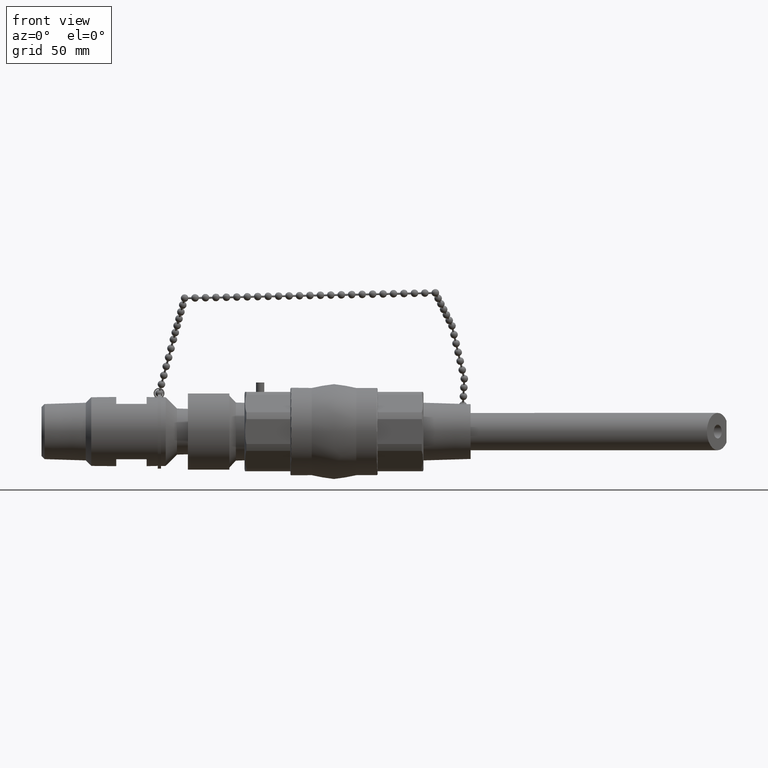
[diagram: clean part render]
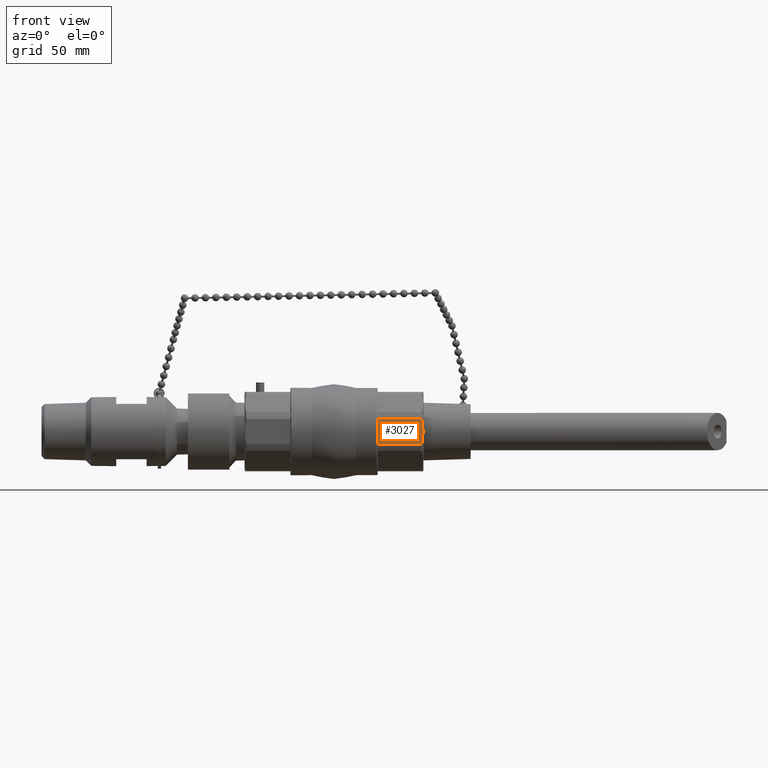
[diagram: same view with one face highlighted and labeled with its STEP entity id]
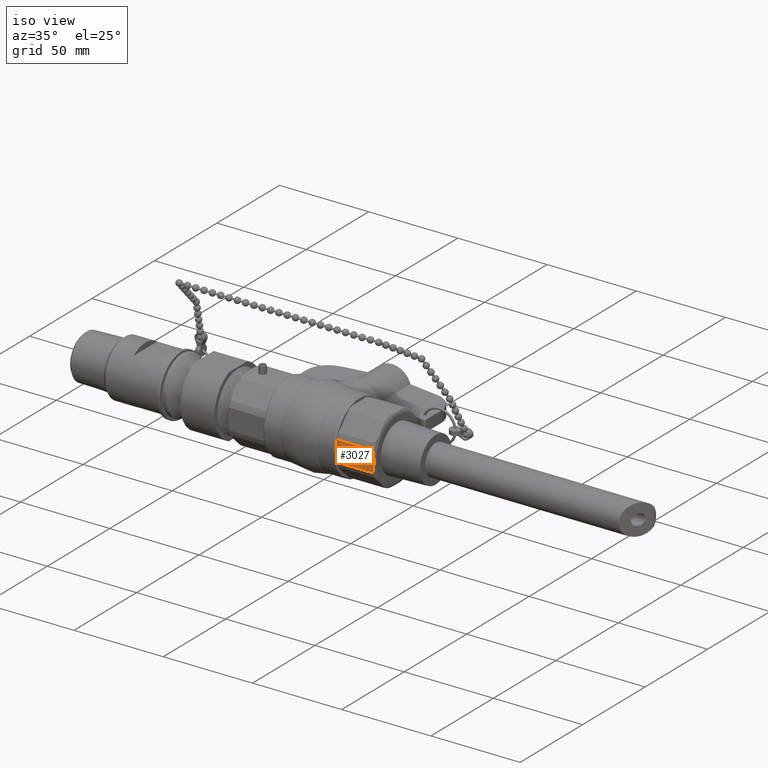
[diagram: same view with one face highlighted and labeled with its STEP entity id]
A machine part, front view. The second image highlights one B-rep face of the part: STEP entity #3027.
A second angle (iso view) of the same face is appended — the face is thin or edge-on in the first view.
In plain terms, the highlighted face is a freeform B-spline surface patch.
Its self-contained STEP definition (entity closure, byte-faithful):
#2114=CARTESIAN_POINT('',(1.585112702707064,-0.717500000000000,0.225161608628114));
#2115=VERTEX_POINT('',#2114);
#2123=CARTESIAN_POINT('',(1.585112702707064,-0.717500000000000,-0.225161608628114));
#2124=VERTEX_POINT('',#2123);
#2125=CARTESIAN_POINT('',(1.585112702707064,-0.717500000000000,0.225161608628114));
#2126=CARTESIAN_POINT('',(1.593438193017208,-0.717500000000000,0.194850896924236));
#2127=CARTESIAN_POINT('',(1.598495457448399,-0.717500000000000,0.162194368817727));
#2128=CARTESIAN_POINT('',(1.606212016415179,-0.717500000000000,0.085193501644084));
#2129=CARTESIAN_POINT('',(1.607564392373896,-0.717500000000000,0.040601387131935));
#2130=CARTESIAN_POINT('',(1.607564392373896,-0.717500000000000,1.968699E-016));
#2131=CARTESIAN_POINT('',(1.607564392373896,-0.717500000000000,-0.040601387131935));
#2132=CARTESIAN_POINT('',(1.606212016415179,-0.717500000000000,-0.085193501644084));
#2133=CARTESIAN_POINT('',(1.598495457448399,-0.717500000000000,-0.162194368817727));
#2134=CARTESIAN_POINT('',(1.593438193017208,-0.717500000000000,-0.194850896924235));
#2135=CARTESIAN_POINT('',(1.585112702707064,-0.717500000000000,-0.225161608628114));
#2136=B_SPLINE_CURVE_WITH_KNOTS('',3,(#2125,#2126,#2127,#2128,#2129,#2130,#2131,#2132,#2133,#2134,#2135),.UNSPECIFIED.,.F.,.U.,(4,2,3,2,4),(-0.541598222803650,-0.309382569945343,0.0,0.309382569945343,0.541598222803650),.UNSPECIFIED.);
#2137=EDGE_CURVE('',#2115,#2124,#2136,.T.);
#2997=CARTESIAN_POINT('',(1.607664385913736,-0.717500000000000,-0.225261602167954));
#2998=CARTESIAN_POINT('',(1.607664385913736,-0.717500000000000,0.225261602167955));
#2999=CARTESIAN_POINT('',(0.788000000000000,-0.717500000000000,-0.225261602167954));
#3000=CARTESIAN_POINT('',(0.788000000000000,-0.717500000000000,0.225261602167954));
#3001=B_SPLINE_SURFACE_WITH_KNOTS('',1,1,((#2997,#2999),(#2998,#3000)),.UNSPECIFIED.,.F.,.F.,.U.,(2,2),(2,2),(0.0,0.450523204335909),(0.0,0.819664385913736),.UNSPECIFIED.);
#3002=ORIENTED_EDGE('',*,*,#2137,.F.);
#3003=CARTESIAN_POINT('',(0.788000000000000,-0.717500000000000,0.225161608628114));
#3004=VERTEX_POINT('',#3003);
#3005=CARTESIAN_POINT('',(1.585112702707064,-0.717500000000000,0.225161608628114));
#3006=DIRECTION('',(-1.0,0.0,0.0));
#3007=VECTOR('',#3006,0.797112702707064);
#3008=LINE('',#3005,#3007);
#3009=EDGE_CURVE('',#2115,#3004,#3008,.T.);
#3010=ORIENTED_EDGE('',*,*,#3009,.T.);
#3011=CARTESIAN_POINT('',(0.788000000000000,-0.717500000000000,-0.225161608628114));
#3012=VERTEX_POINT('',#3011);
#3013=CARTESIAN_POINT('',(0.788000000000000,-0.717500000000000,-0.225161608628114));
#3014=DIRECTION('',(0.0,0.0,1.0));
#3015=VECTOR('',#3014,0.450323217256228);
#3016=LINE('',#3013,#3015);
#3017=EDGE_CURVE('',#3012,#3004,#3016,.T.);
#3018=ORIENTED_EDGE('',*,*,#3017,.F.);
#3019=CARTESIAN_POINT('',(0.788000000000000,-0.717500000000000,-0.225161608628114));
#3020=DIRECTION('',(1.0,0.0,0.0));
#3021=VECTOR('',#3020,0.797112702707064);
#3022=LINE('',#3019,#3021);
#3023=EDGE_CURVE('',#3012,#2124,#3022,.T.);
#3024=ORIENTED_EDGE('',*,*,#3023,.T.);
#3025=EDGE_LOOP('',(#3002,#3010,#3018,#3024));
#3026=FACE_OUTER_BOUND('',#3025,.T.);
#3027=ADVANCED_FACE('',(#3026),#3001,.T.);